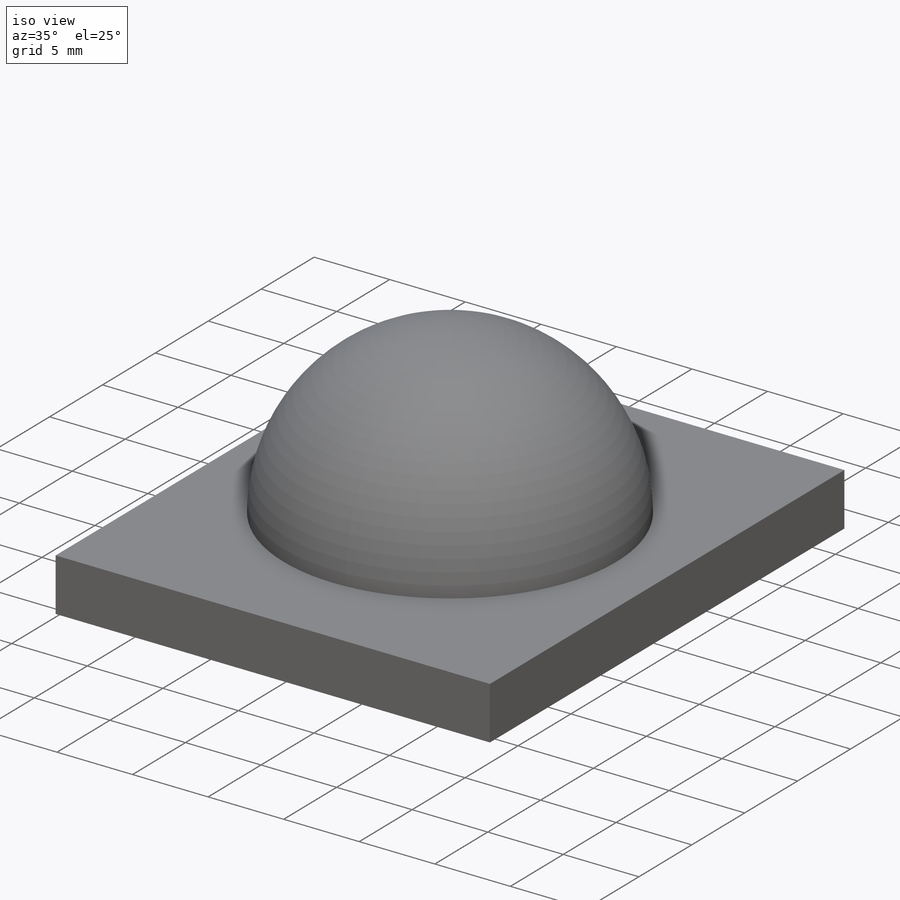
[diagram: iso view]
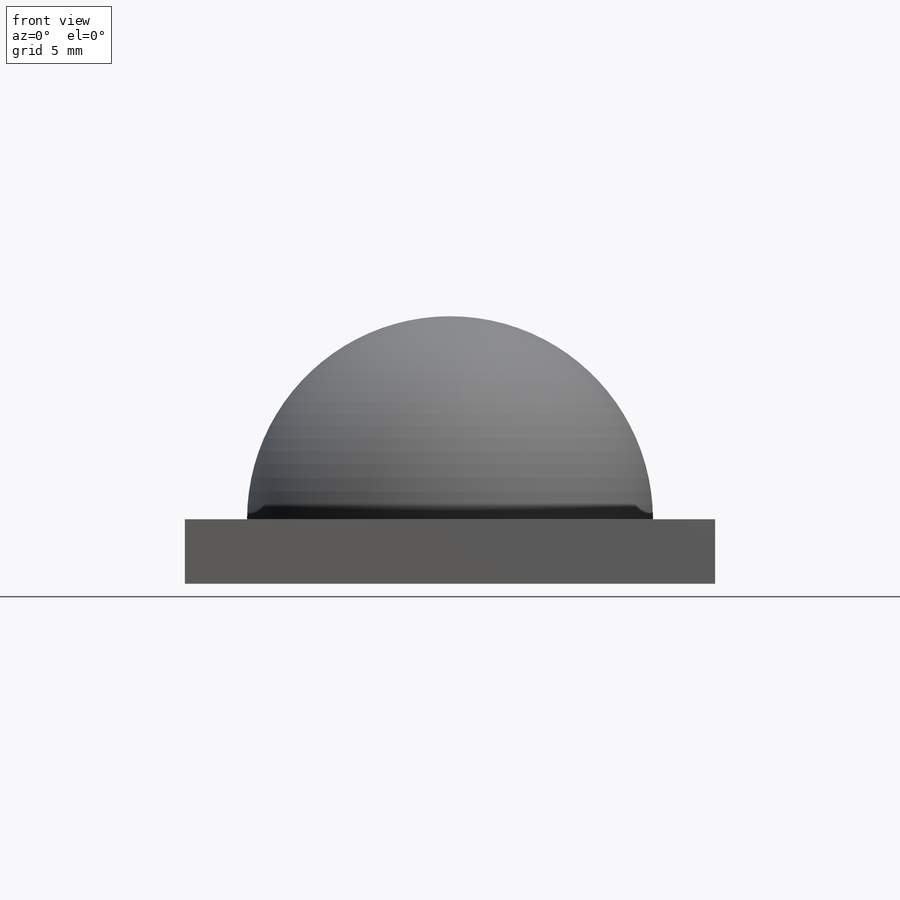
[diagram: front view]
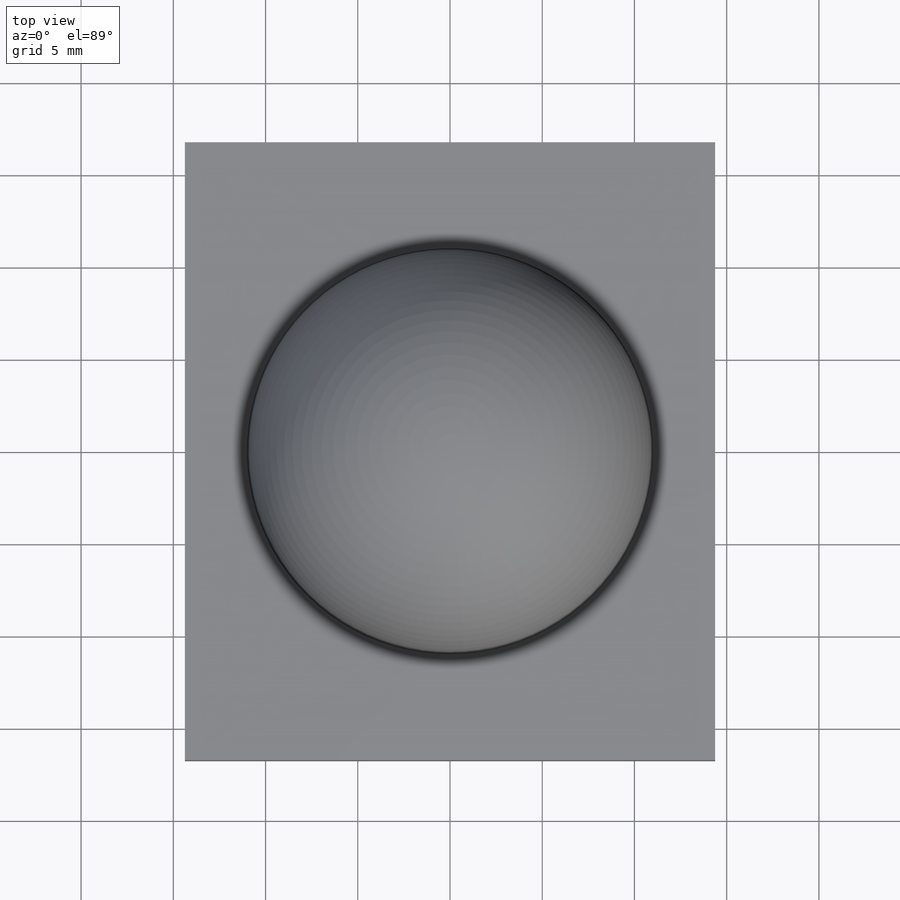
[diagram: top view]
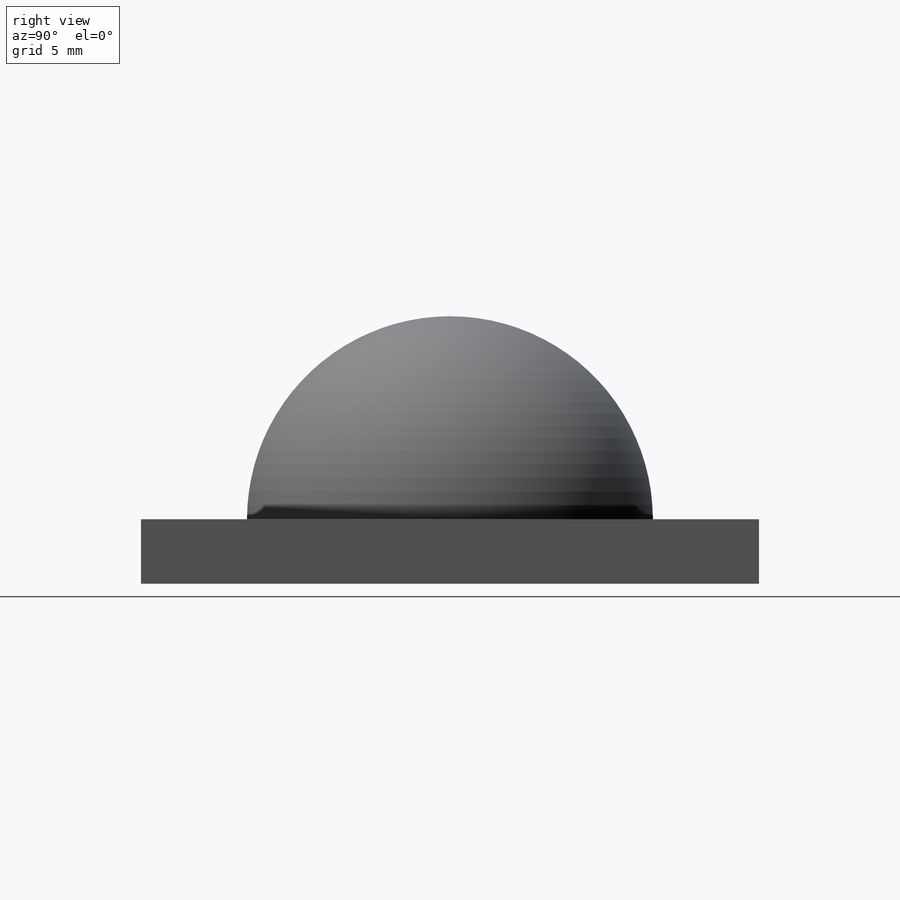
[diagram: right view]
SOLIDWORKS PART (.sldprt)
format: sldprt  version: not decoded by parser v0  size: 374,784 bytes
history: native  units: mm
features: sketch x3, material x1, extrude x1, revolve x1 (+11 scaffold rows collapsed)
feature tree (17):
  scaffold x11  (default folders/planes/origin — collapsed)
  material  "Material <not specified>"
  sketch  "Sketch1"  dims[D1=28.74mm D2=33.5mm]
  extrude  "Boss-Extrude1"  Depth=3.5mm
  sketch  "Sketch3"  dims[D1=22.0mm]
  sketch  "Sketch4"  dims[D1=11.0mm D2=3.4mm]
  revolve  "Revolve1"  Angle=360deg
decode coverage: 5 of 5 modeling features carry decoded parameters
note: suppression state not decoded; provenance and decode notes live in map.json
